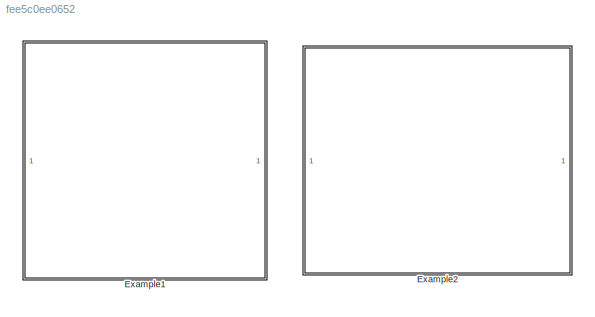
MODEL slx_fee5c0ee0652
KIND model
CONFIG AbsTol = auto
CONFIG EnableMultiTasking = off
CONFIG FixedStep = auto
CONFIG MaxStep = auto
CONFIG MinStep = auto
CONFIG RelTol = 1e-3
CONFIG SampleTimeConstraint = Unconstrained
CONFIG SolverName = ode45
CONFIG StartTime = 0.0
CONFIG StopTime = 100
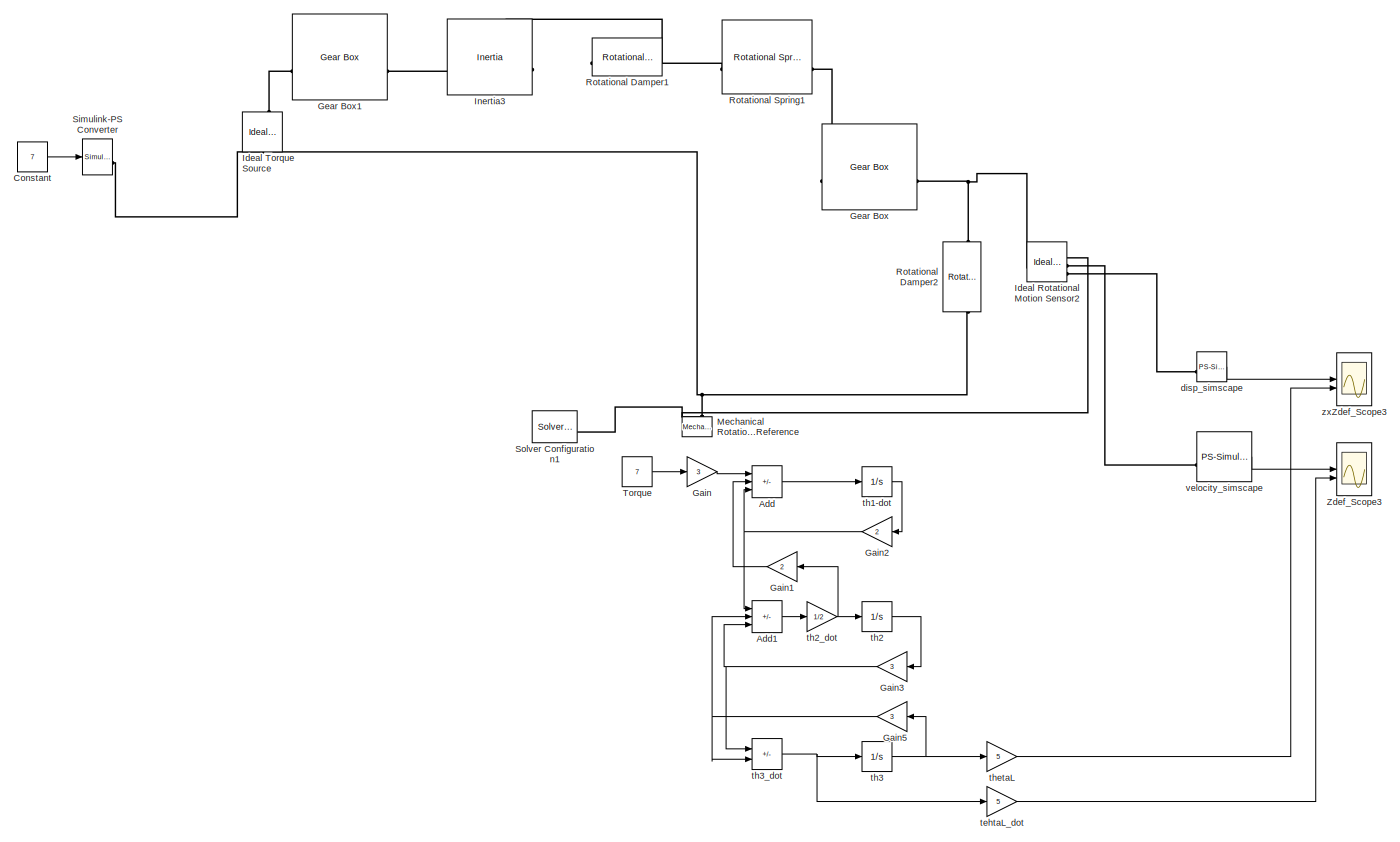
[diagram: Example1 - part 1/1, most of the canvas]
BLOCK [SubSystem] Example1
BLOCK [Sum] Example1/Add
  IconShape = rectangular
  Inputs = ++-
BLOCK [Sum] Example1/Add1
  IconShape = rectangular
  Inputs = ++-
BLOCK [Constant] Example1/Constant
  Value = 7
BLOCK [Gain] Example1/Gain
  Gain = 3
BLOCK [Gain] Example1/Gain1
  Gain = 2
BLOCK [Gain] Example1/Gain2
  Gain = 2
BLOCK [Gain] Example1/Gain3
  Gain = 3
BLOCK [Gain] Example1/Gain5
  Gain = 3
BLOCK [Reference] Example1/Gear Box  REF=fl_lib/Mechanical/Mechanisms/Gear Box
  SourceBlock = fl_lib/Mechanical/Mechanisms/Gear Box
  SourceType = Gear Box
BLOCK [Reference] Example1/Gear Box1  REF=fl_lib/Mechanical/Mechanisms/Gear Box
  SourceBlock = fl_lib/Mechanical/Mechanisms/Gear Box
  SourceType = Gear Box
BLOCK [Reference] Example1/Ideal Rotational Motion Sensor2  REF=fl_lib/Mechanical/Mechanical Sensors/Ideal Rotational
Motion Sensor
  SourceBlock = fl_lib/Mechanical/Mechanical Sensors/Ideal Rotational\nMotion Sensor
  SourceType = Ideal Rotational\nMotion Sensor
BLOCK [Reference] Example1/Ideal Torque Source  REF=fl_lib/Mechanical/Mechanical Sources/Ideal Torque Source
  NameLocation = right
  SourceBlock = fl_lib/Mechanical/Mechanical Sources/Ideal Torque Source
  SourceType = Ideal Torque Source
BLOCK [Reference] Example1/Inertia3  REF=fl_lib/Mechanical/Rotational Elements/Inertia
  NameLocation = top
  SourceBlock = fl_lib/Mechanical/Rotational Elements/Inertia
  SourceType = Inertia
BLOCK [Reference] Example1/Mechanical Rotational Reference  REF=fl_lib/Mechanical/Rotational Elements/Mechanical
Rotational Reference
  NameLocation = right
  SourceBlock = fl_lib/Mechanical/Rotational Elements/Mechanical\nRotational Reference
  SourceType = Mechanical\nRotational Reference
BLOCK [Reference] Example1/Rotational Damper1  REF=fl_lib/Mechanical/Rotational Elements/Rotational Damper
  NameLocation = top
  SourceBlock = fl_lib/Mechanical/Rotational Elements/Rotational Damper
  SourceType = Rotational Damper
BLOCK [Reference] Example1/Rotational Damper2  REF=fl_lib/Mechanical/Rotational Elements/Rotational Damper
  NameLocation = left
  SourceBlock = fl_lib/Mechanical/Rotational Elements/Rotational Damper
  SourceType = Rotational Damper
BLOCK [Reference] Example1/Rotational Spring1  REF=fl_lib/Mechanical/Rotational Elements/Rotational Spring
  SourceBlock = fl_lib/Mechanical/Rotational Elements/Rotational Spring
  SourceType = Rotational Spring
BLOCK [Reference] Example1/Simulink-PS Converter  REF=nesl_utility/Simulink-PS
Converter
  SourceBlock = nesl_utility/Simulink-PS\nConverter
  SourceType = Simulink-PS\nConverter
BLOCK [Reference] Example1/Solver Configuration1  REF=nesl_utility/Solver
Configuration
  SourceBlock = nesl_utility/Solver\nConfiguration
  SourceType = Solver\nConfiguration
BLOCK [Constant] Example1/Torque 
  Value = 7
BLOCK [Scope] Example1/Zdef_Scope3
  Floating = off
  NumInputPorts = 2
  ScopeSpecificationString = Simulink.scopes.TimeScopeBlockCfg('CurrentConfiguration', extmgr.ConfigurationSet(extmgr.Configuration('Core','General UI',true),extmgr.Configuration('Core','Source UI',true),extmgr.Configuration('Sources','WiredSimulink',true,'DataLoggingSaveFormat','StructureWithTime','DataLoggingMaxPoints','50000','DataLoggingDecimation','1','DataLoggingDecimateData',true,'DataLoggingVariableName','ScopeData1')...<+1841ch>
BLOCK [Reference] Example1/disp_simscape  REF=nesl_utility/PS-Simulink
Converter
  SourceBlock = nesl_utility/PS-Simulink\nConverter
  SourceType = PS-Simulink\nConverter
BLOCK [Gain] Example1/tehtaL_dot
  Gain = 5
BLOCK [Integrator] Example1/th1-dot
BLOCK [Integrator] Example1/th2
BLOCK [Gain] Example1/th2_dot
  Gain = 1/2
BLOCK [Integrator] Example1/th3
BLOCK [Sum] Example1/th3_dot
  IconShape = rectangular
  Inputs = +-
BLOCK [Gain] Example1/thetaL
  Gain = 5
BLOCK [Reference] Example1/velocity_simscape  REF=nesl_utility/PS-Simulink
Converter
  SourceBlock = nesl_utility/PS-Simulink\nConverter
  SourceType = PS-Simulink\nConverter
BLOCK [Scope] Example1/zxZdef_Scope3
  Floating = off
  NumInputPorts = 2
  ScopeSpecificationString = Simulink.scopes.TimeScopeBlockCfg('CurrentConfiguration', extmgr.ConfigurationSet(extmgr.Configuration('Core','General UI',true),extmgr.Configuration('Core','Source UI',true),extmgr.Configuration('Sources','WiredSimulink',true,'DataLoggingSaveFormat','StructureWithTime','DataLoggingMaxPoints','50000','DataLoggingDecimation','1','DataLoggingDecimateData',true,'DataLoggingVariableName','ScopeData2')...<+1858ch>
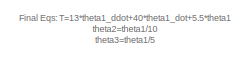
[diagram: Example2 - part 1/2, top right region]
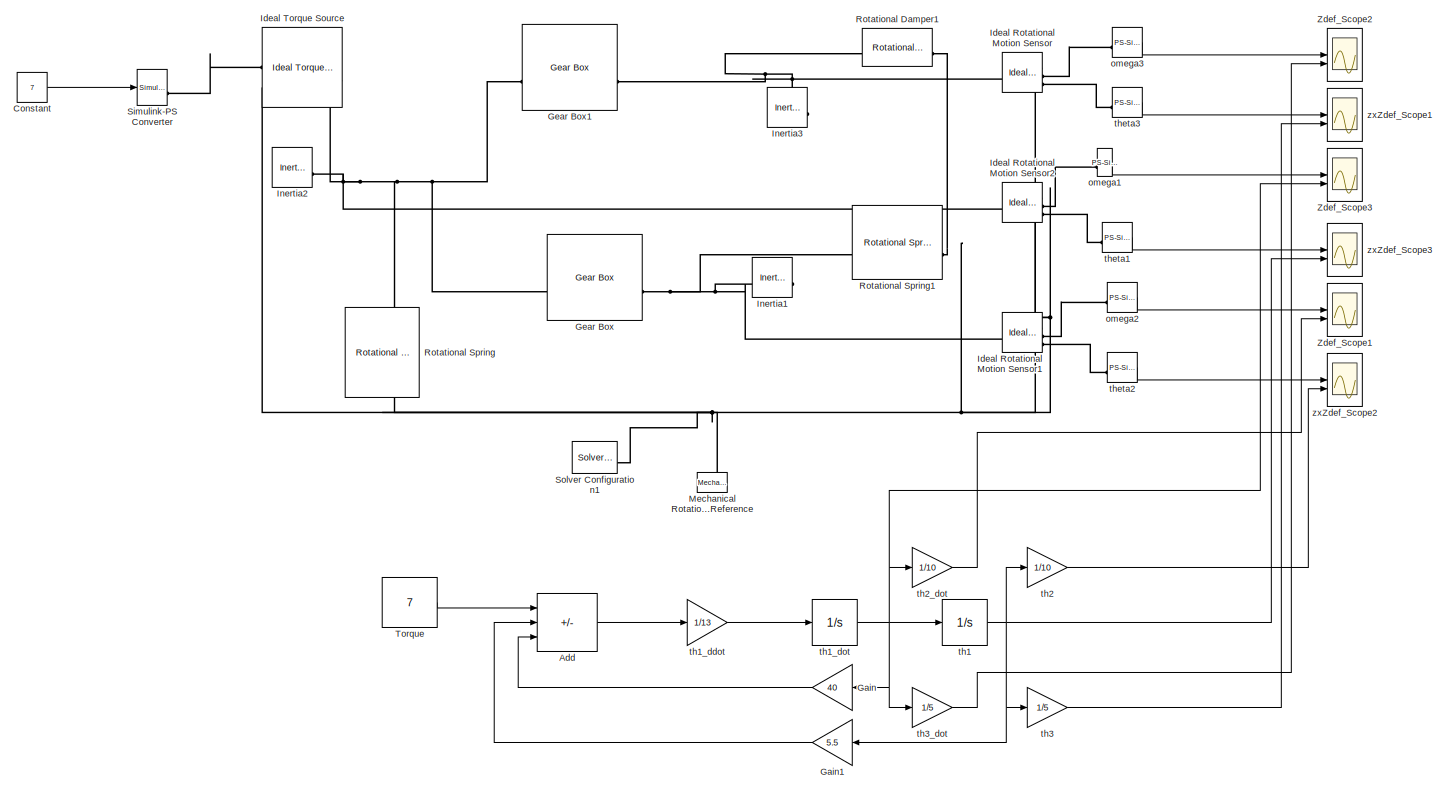
[diagram: Example2 - part 2/2, most of the canvas]
BLOCK [SubSystem] Example2
  Commented = on
BLOCK [Sum] Example2/Add
  IconShape = rectangular
  Inputs = +--
BLOCK [Constant] Example2/Constant
  Value = 7
BLOCK [Gain] Example2/Gain
  Gain = 40
BLOCK [Gain] Example2/Gain1
  Gain = 5.5
BLOCK [Reference] Example2/Gear Box  REF=fl_lib/Mechanical/Mechanisms/Gear Box
  SourceBlock = fl_lib/Mechanical/Mechanisms/Gear Box
  SourceType = Gear Box
BLOCK [Reference] Example2/Gear Box1  REF=fl_lib/Mechanical/Mechanisms/Gear Box
  SourceBlock = fl_lib/Mechanical/Mechanisms/Gear Box
  SourceType = Gear Box
BLOCK [Reference] Example2/Ideal Rotational Motion Sensor  REF=fl_lib/Mechanical/Mechanical Sensors/Ideal Rotational
Motion Sensor
  SourceBlock = fl_lib/Mechanical/Mechanical Sensors/Ideal Rotational\nMotion Sensor
  SourceType = Ideal Rotational\nMotion Sensor
BLOCK [Reference] Example2/Ideal Rotational Motion Sensor1  REF=fl_lib/Mechanical/Mechanical Sensors/Ideal Rotational
Motion Sensor
  SourceBlock = fl_lib/Mechanical/Mechanical Sensors/Ideal Rotational\nMotion Sensor
  SourceType = Ideal Rotational\nMotion Sensor
BLOCK [Reference] Example2/Ideal Rotational Motion Sensor2  REF=fl_lib/Mechanical/Mechanical Sensors/Ideal Rotational
Motion Sensor
  SourceBlock = fl_lib/Mechanical/Mechanical Sensors/Ideal Rotational\nMotion Sensor
  SourceType = Ideal Rotational\nMotion Sensor
BLOCK [Reference] Example2/Ideal Torque Source  REF=fl_lib/Mechanical/Mechanical Sources/Ideal Torque Source
  SourceBlock = fl_lib/Mechanical/Mechanical Sources/Ideal Torque Source
  SourceType = Ideal Torque Source
BLOCK [Reference] Example2/Inertia1  REF=fl_lib/Mechanical/Rotational Elements/Inertia
  NameLocation = top
  SourceBlock = fl_lib/Mechanical/Rotational Elements/Inertia
  SourceType = Inertia
BLOCK [Reference] Example2/Inertia2  REF=fl_lib/Mechanical/Rotational Elements/Inertia
  SourceBlock = fl_lib/Mechanical/Rotational Elements/Inertia
  SourceType = Inertia
BLOCK [Reference] Example2/Inertia3  REF=fl_lib/Mechanical/Rotational Elements/Inertia
  NameLocation = top
  SourceBlock = fl_lib/Mechanical/Rotational Elements/Inertia
  SourceType = Inertia
BLOCK [Reference] Example2/Mechanical Rotational Reference  REF=fl_lib/Mechanical/Rotational Elements/Mechanical
Rotational Reference
  NameLocation = right
  SourceBlock = fl_lib/Mechanical/Rotational Elements/Mechanical\nRotational Reference
  SourceType = Mechanical\nRotational Reference
BLOCK [Reference] Example2/Rotational Damper1  REF=fl_lib/Mechanical/Rotational Elements/Rotational Damper
  SourceBlock = fl_lib/Mechanical/Rotational Elements/Rotational Damper
  SourceType = Rotational Damper
BLOCK [Reference] Example2/Rotational Spring  REF=fl_lib/Mechanical/Rotational Elements/Rotational Spring
  NameLocation = left
  SourceBlock = fl_lib/Mechanical/Rotational Elements/Rotational Spring
  SourceType = Rotational Spring
BLOCK [Reference] Example2/Rotational Spring1  REF=fl_lib/Mechanical/Rotational Elements/Rotational Spring
  SourceBlock = fl_lib/Mechanical/Rotational Elements/Rotational Spring
  SourceType = Rotational Spring
BLOCK [Reference] Example2/Simulink-PS Converter  REF=nesl_utility/Simulink-PS
Converter
  SourceBlock = nesl_utility/Simulink-PS\nConverter
  SourceType = Simulink-PS\nConverter
BLOCK [Reference] Example2/Solver Configuration1  REF=nesl_utility/Solver
Configuration
  SourceBlock = nesl_utility/Solver\nConfiguration
  SourceType = Solver\nConfiguration
BLOCK [Constant] Example2/Torque 
  Value = 7
BLOCK [Scope] Example2/Zdef_Scope1
  Floating = off
  NumInputPorts = 2
  ScopeSpecificationString = Simulink.scopes.TimeScopeBlockCfg('CurrentConfiguration', extmgr.ConfigurationSet(extmgr.Configuration('Core','General UI',true,'FigureColor',[1 1 1]),extmgr.Configuration('Core','Source UI',true),extmgr.Configuration('Sources','WiredSimulink',true,'DataLoggingSaveFormat','StructureWithTime','DataLoggingMaxPoints','50000','DataLoggingDecimation','1','DataLoggingDecimateData',true,'DataLoggingVaria...<+1891ch>
BLOCK [Scope] Example2/Zdef_Scope2
  Floating = off
  NumInputPorts = 2
  ScopeSpecificationString = Simulink.scopes.TimeScopeBlockCfg('CurrentConfiguration', extmgr.ConfigurationSet(extmgr.Configuration('Core','General UI',true,'FigureColor',[1 1 1]),extmgr.Configuration('Core','Source UI',true),extmgr.Configuration('Sources','WiredSimulink',true,'DataLoggingSaveFormat','StructureWithTime','DataLoggingMaxPoints','50000','DataLoggingDecimation','1','DataLoggingDecimateData',true,'DataLoggingVaria...<+1892ch>
BLOCK [Scope] Example2/Zdef_Scope3
  Floating = off
  NumInputPorts = 2
  ScopeSpecificationString = Simulink.scopes.TimeScopeBlockCfg('CurrentConfiguration', extmgr.ConfigurationSet(extmgr.Configuration('Core','General UI',true,'FigureColor',[1 1 1]),extmgr.Configuration('Core','Source UI',true),extmgr.Configuration('Sources','WiredSimulink',true,'DataLoggingSaveFormat','StructureWithTime','DataLoggingMaxPoints','50000','DataLoggingDecimation','1','DataLoggingDecimateData',true,'DataLoggingVaria...<+1888ch>
BLOCK [Reference] Example2/omega1  REF=nesl_utility/PS-Simulink
Converter
  SourceBlock = nesl_utility/PS-Simulink\nConverter
  SourceType = PS-Simulink\nConverter
BLOCK [Reference] Example2/omega2  REF=nesl_utility/PS-Simulink
Converter
  SourceBlock = nesl_utility/PS-Simulink\nConverter
  SourceType = PS-Simulink\nConverter
BLOCK [Reference] Example2/omega3  REF=nesl_utility/PS-Simulink
Converter
  SourceBlock = nesl_utility/PS-Simulink\nConverter
  SourceType = PS-Simulink\nConverter
BLOCK [Integrator] Example2/th1
BLOCK [Gain] Example2/th1_ddot 
  Gain = 1/13
BLOCK [Integrator] Example2/th1_dot
BLOCK [Gain] Example2/th2
  Gain = 1/10
BLOCK [Gain] Example2/th2_dot
  Gain = 1/10
BLOCK [Gain] Example2/th3
  Gain = 1/5
BLOCK [Gain] Example2/th3_dot 
  Gain = 1/5
BLOCK [Reference] Example2/theta1  REF=nesl_utility/PS-Simulink
Converter
  SourceBlock = nesl_utility/PS-Simulink\nConverter
  SourceType = PS-Simulink\nConverter
BLOCK [Reference] Example2/theta2  REF=nesl_utility/PS-Simulink
Converter
  SourceBlock = nesl_utility/PS-Simulink\nConverter
  SourceType = PS-Simulink\nConverter
BLOCK [Reference] Example2/theta3  REF=nesl_utility/PS-Simulink
Converter
  SourceBlock = nesl_utility/PS-Simulink\nConverter
  SourceType = PS-Simulink\nConverter
BLOCK [Scope] Example2/zxZdef_Scope1
  Floating = off
  NumInputPorts = 2
  ScopeSpecificationString = Simulink.scopes.TimeScopeBlockCfg('CurrentConfiguration', extmgr.ConfigurationSet(extmgr.Configuration('Core','General UI',true,'FigureColor',[1 1 1]),extmgr.Configuration('Core','Source UI',true),extmgr.Configuration('Sources','WiredSimulink',true,'DataLoggingSaveFormat','StructureWithTime','DataLoggingMaxPoints','50000','DataLoggingDecimation','1','DataLoggingDecimateData',true,'DataLoggingVaria...<+1980ch>
BLOCK [Scope] Example2/zxZdef_Scope2
  Floating = off
  NumInputPorts = 2
  ScopeSpecificationString = Simulink.scopes.TimeScopeBlockCfg('CurrentConfiguration', extmgr.ConfigurationSet(extmgr.Configuration('Core','General UI',true,'FigureColor',[1 1 1]),extmgr.Configuration('Core','Source UI',true),extmgr.Configuration('Sources','WiredSimulink',true,'DataLoggingSaveFormat','StructureWithTime','DataLoggingMaxPoints','50000','DataLoggingDecimation','1','DataLoggingDecimateData',true,'DataLoggingVaria...<+1982ch>
BLOCK [Scope] Example2/zxZdef_Scope3
  Floating = off
  NumInputPorts = 2
  ScopeSpecificationString = Simulink.scopes.TimeScopeBlockCfg('CurrentConfiguration', extmgr.ConfigurationSet(extmgr.Configuration('Core','General UI',true,'FigureColor',[1 1 1]),extmgr.Configuration('Core','Source UI',true),extmgr.Configuration('Sources','WiredSimulink',true,'DataLoggingSaveFormat','StructureWithTime','DataLoggingMaxPoints','50000','DataLoggingDecimation','1','DataLoggingDecimateData',true,'DataLoggingVaria...<+1884ch>
ANNOTATION Example2: Final Eqs: T=13*theta1_ddot+40*theta1_dot+5.5*theta1 theta2=theta1/10 theta3=theta1/5
LINE Example1/Add1:1 -> Example1/th2_dot:1
LINE Example1/Add:1 -> Example1/th1-dot:1
LINE Example1/Constant:1 -> Example1/Simulink-PS Converter:1
LINE Example1/Gain1:1 -> Example1/Add:2
NET Example1/Gain2:1 -> Example1/Add1:1, Example1/Add:3
NET Example1/Gain3:1 -> Example1/Add1:3, Example1/th3_dot:1
NET Example1/Gain5:1 -> Example1/Add1:2, Example1/th3_dot:2
LINE Example1/Gain:1 -> Example1/Add:1
LINE Example1/Torque :1 -> Example1/Gain:1
LINE Example1/disp_simscape:1 -> Example1/zxZdef_Scope3:1
LINE Example1/tehtaL_dot:1 -> Example1/Zdef_Scope3:2
LINE Example1/th1-dot:1 -> Example1/Gain2:1
LINE Example1/th2:1 -> Example1/Gain3:1
NET Example1/th2_dot:1 -> Example1/Gain1:1, Example1/th2:1
NET Example1/th3:1 -> Example1/Gain5:1, Example1/thetaL:1
NET Example1/th3_dot:1 -> Example1/tehtaL_dot:1, Example1/th3:1
LINE Example1/thetaL:1 -> Example1/zxZdef_Scope3:2
LINE Example1/velocity_simscape:1 -> Example1/Zdef_Scope3:1
LINE Example2/Add:1 -> Example2/th1_ddot :1
LINE Example2/Constant:1 -> Example2/Simulink-PS Converter:1
LINE Example2/Gain1:1 -> Example2/Add:2
LINE Example2/Gain:1 -> Example2/Add:3
LINE Example2/Torque :1 -> Example2/Add:1
LINE Example2/omega1:1 -> Example2/Zdef_Scope3:1
LINE Example2/omega2:1 -> Example2/Zdef_Scope1:1
LINE Example2/omega3:1 -> Example2/Zdef_Scope2:1
NET Example2/th1:1 -> Example2/Gain1:1, Example2/th2:1, Example2/th3:1, Example2/zxZdef_Scope3:2
LINE Example2/th1_ddot :1 -> Example2/th1_dot:1
NET Example2/th1_dot:1 -> Example2/Gain:1, Example2/Zdef_Scope3:2, Example2/th1:1, Example2/th2_dot:1, Example2/th3_dot :1
LINE Example2/th2:1 -> Example2/zxZdef_Scope2:2
LINE Example2/th2_dot:1 -> Example2/Zdef_Scope1:2
LINE Example2/th3:1 -> Example2/zxZdef_Scope1:2
LINE Example2/th3_dot :1 -> Example2/Zdef_Scope2:2
LINE Example2/theta1:1 -> Example2/zxZdef_Scope3:1
LINE Example2/theta2:1 -> Example2/zxZdef_Scope2:1
LINE Example2/theta3:1 -> Example2/zxZdef_Scope1:1
PLINE Example1/Gear Box1:LConn1 -- Example1/Ideal Torque Source:LConn1
PNET net1: Example1/Gear Box1:RConn1 -- Example1/Inertia3:LConn1 -- Example1/Rotational Damper1:RConn1
PLINE Example1/Gear Box:LConn1 -- Example1/Rotational Spring1:RConn1
PNET net2: Example1/Gear Box:RConn1 -- Example1/Ideal Rotational Motion Sensor2:LConn1 -- Example1/Rotational Damper2:LConn1
PNET net3: Example1/Ideal Rotational Motion Sensor2:RConn1 -- Example1/Ideal Torque Source:RConn2 -- Example1/Mechanical Rotational Reference:LConn1 -- Example1/Rotational Damper2:RConn1 -- Example1/Solver Configuration1:RConn1
PLINE Example1/Ideal Rotational Motion Sensor2:RConn2 -- Example1/velocity_simscape:LConn1
PLINE Example1/Ideal Rotational Motion Sensor2:RConn3 -- Example1/disp_simscape:LConn1
PLINE Example1/Ideal Torque Source:RConn1 -- Example1/Simulink-PS Converter:RConn1
PLINE Example1/Rotational Damper1:LConn1 -- Example1/Rotational Spring1:LConn1
PNET net4: Example2/Gear Box1:LConn1 -- Example2/Gear Box:LConn1 -- Example2/Ideal Rotational Motion Sensor2:LConn1 -- Example2/Ideal Torque Source:LConn1 -- Example2/Inertia2:LConn1 -- Example2/Rotational Spring:LConn1
PNET net5: Example2/Gear Box1:RConn1 -- Example2/Ideal Rotational Motion Sensor:LConn1 -- Example2/Inertia3:LConn1 -- Example2/Rotational Damper1:LConn1
PNET net6: Example2/Gear Box:RConn1 -- Example2/Ideal Rotational Motion Sensor1:LConn1 -- Example2/Inertia1:LConn1 -- Example2/Rotational Spring1:LConn1
PNET net7: Example2/Ideal Rotational Motion Sensor1:RConn1 -- Example2/Ideal Rotational Motion Sensor2:RConn1 -- Example2/Ideal Rotational Motion Sensor:RConn1 -- Example2/Ideal Torque Source:RConn2 -- Example2/Mechanical Rotational Reference:LConn1 -- Example2/Rotational Damper1:RConn1 -- Example2/Rotational Spring1:RConn1 -- Example2/Rotational Spring:RConn1 -- Example2/Solver Configuration1:RConn1
PLINE Example2/Ideal Rotational Motion Sensor1:RConn2 -- Example2/omega2:LConn1
PLINE Example2/Ideal Rotational Motion Sensor1:RConn3 -- Example2/theta2:LConn1
PLINE Example2/Ideal Rotational Motion Sensor2:RConn2 -- Example2/omega1:LConn1
PLINE Example2/Ideal Rotational Motion Sensor2:RConn3 -- Example2/theta1:LConn1
PLINE Example2/Ideal Rotational Motion Sensor:RConn2 -- Example2/omega3:LConn1
PLINE Example2/Ideal Rotational Motion Sensor:RConn3 -- Example2/theta3:LConn1
PLINE Example2/Ideal Torque Source:RConn1 -- Example2/Simulink-PS Converter:RConn1
note: NET lines group one-source signal fan-out (src -> all destinations, sorted); 1:1 wires keep LINE; PNET lines group multi-terminal physical nets as a canonical sorted terminal list (undirected conserving connections); 2-terminal nets keep the pairwise PLINE form
